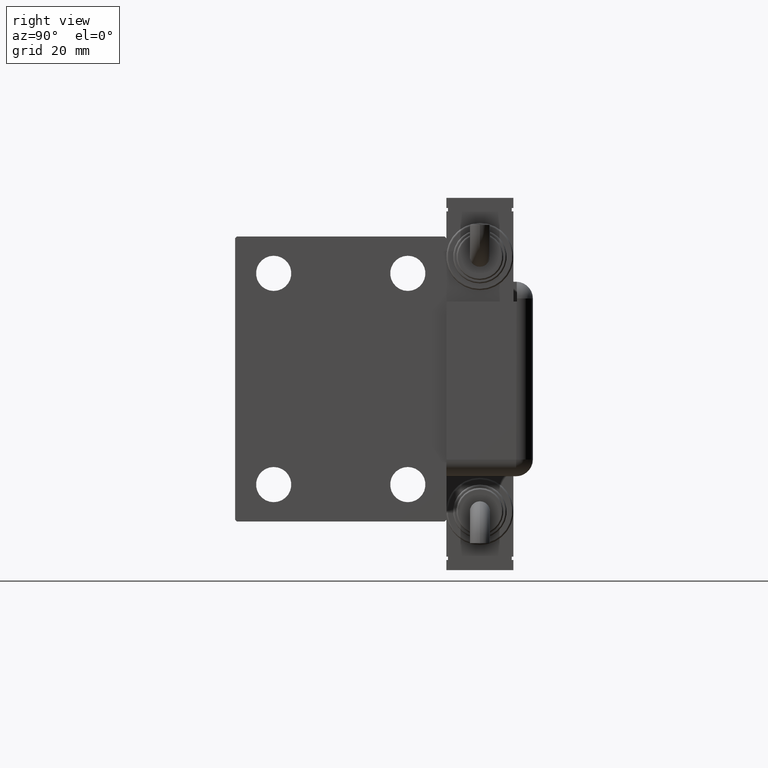
[diagram: clean part render]
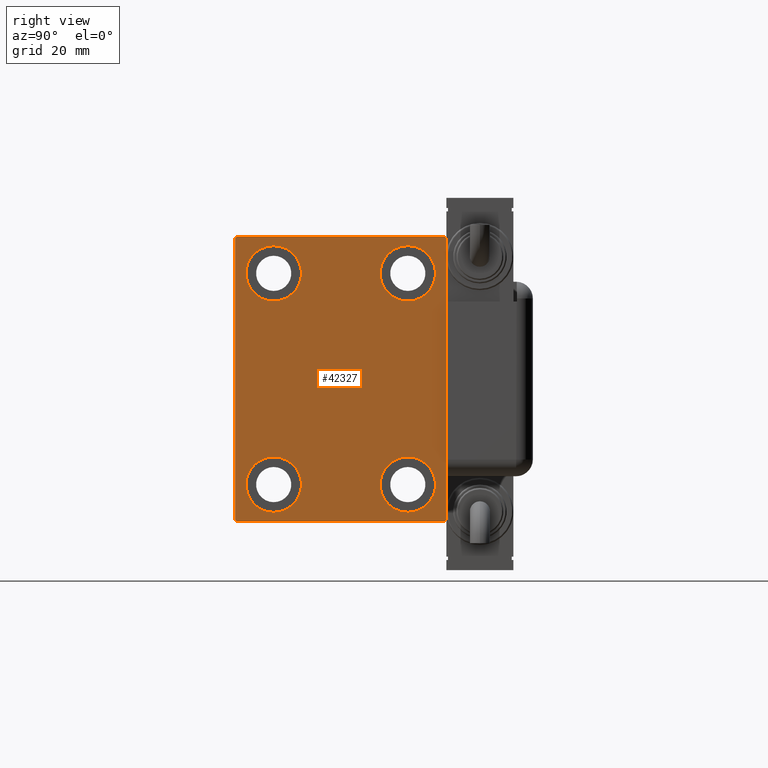
[diagram: same view with one face highlighted and labeled with its STEP entity id]
A machine part, right view. The second image highlights one B-rep face of the part: STEP entity #42327.
In plain terms, the highlighted planar face has unit normal (1, 0, 0).
Its self-contained STEP definition (entity closure, byte-faithful):
#363 = DIRECTION ( 'NONE',  ( 0.000000000000000000, 0.000000000000000000, 1.000000000000000000 ) ) ;
#407 = ORIENTED_EDGE ( 'NONE', *, *, #25971, .T. ) ;
#501 = VERTEX_POINT ( 'NONE', #33634 ) ;
#786 = CARTESIAN_POINT ( 'NONE',  ( 113.0000000000000000, 31.50000000000000000, 41.99999999999997868 ) ) ;
#1880 = CARTESIAN_POINT ( 'NONE',  ( 113.0000000000000000, 20.00000000000000355, 31.50000000000000000 ) ) ;
#2125 = DIRECTION ( 'NONE',  ( 0.000000000000000000, -1.000000000000000000, -2.202823461557850341E-16 ) ) ;
#2522 = FACE_BOUND ( 'NONE', #39746, .T. ) ;
#2602 = DIRECTION ( 'NONE',  ( -1.000000000000000000, -0.000000000000000000, -0.000000000000000000 ) ) ;
#2887 = EDGE_LOOP ( 'NONE', ( #19502, #5166, #49392, #10371, #407, #18317, #56130, #32380 ) ) ;
#4275 = CARTESIAN_POINT ( 'NONE',  ( 113.0000000000000000, -19.99999999999999645, 23.25000000000000355 ) ) ;
#5166 = ORIENTED_EDGE ( 'NONE', *, *, #27017, .T. ) ;
#5441 = VECTOR ( 'NONE', #11401, 1000.000000000000000 ) ;
#5452 = DIRECTION ( 'NONE',  ( -1.000000000000000000, -0.000000000000000000, -0.000000000000000000 ) ) ;
#5490 = ORIENTED_EDGE ( 'NONE', *, *, #39748, .T. ) ;
#6000 = DIRECTION ( 'NONE',  ( -1.000000000000000000, -0.000000000000000000, -0.000000000000000000 ) ) ;
#6802 = ORIENTED_EDGE ( 'NONE', *, *, #26576, .T. ) ;
#7289 = VERTEX_POINT ( 'NONE', #7577 ) ;
#7577 = CARTESIAN_POINT ( 'NONE',  ( 113.0000000000000000, 30.99999999999995737, 42.50000000000000711 ) ) ;
#7749 = DIRECTION ( 'NONE',  ( 0.000000000000000000, 1.000000000000000000, 0.000000000000000000 ) ) ;
#8161 = AXIS2_PLACEMENT_3D ( 'NONE', #55216, #55515, #37378 ) ;
#9238 = AXIS2_PLACEMENT_3D ( 'NONE', #45702, #14572, #363 ) ;
#9383 = EDGE_CURVE ( 'NONE', #25319, #27963, #40907, .T. ) ;
#10136 = LINE ( 'NONE', #32815, #48191 ) ;
#10371 = ORIENTED_EDGE ( 'NONE', *, *, #21369, .T. ) ;
#10837 = CARTESIAN_POINT ( 'NONE',  ( 113.0000000000000000, 19.99999999999999645, -31.49999999999999289 ) ) ;
#11293 = PLANE ( 'NONE',  #48804 ) ;
#11401 = DIRECTION ( 'NONE',  ( -0.000000000000000000, -0.7071067811865573427, 0.7071067811865378028 ) ) ;
#14369 = DIRECTION ( 'NONE',  ( 0.000000000000000000, -0.7071067811865474617, -0.7071067811865474617 ) ) ;
#14572 = DIRECTION ( 'NONE',  ( -1.000000000000000000, -0.000000000000000000, -0.000000000000000000 ) ) ;
#15191 = CIRCLE ( 'NONE', #24866, 8.249999999999992895 ) ;
#15451 = VECTOR ( 'NONE', #31459, 1000.000000000000114 ) ;
#15501 = ORIENTED_EDGE ( 'NONE', *, *, #17149, .T. ) ;
#15849 = LINE ( 'NONE', #57848, #27871 ) ;
#15924 = LINE ( 'NONE', #19555, #5441 ) ;
#16750 = DIRECTION ( 'NONE',  ( 0.000000000000000000, 0.000000000000000000, -1.000000000000000000 ) ) ;
#17149 = EDGE_CURVE ( 'NONE', #17727, #37861, #30480, .T. ) ;
#17727 = VERTEX_POINT ( 'NONE', #41477 ) ;
#17927 = CARTESIAN_POINT ( 'NONE',  ( 113.0000000000000000, -20.00000000000000355, -23.24999999999999289 ) ) ;
#18275 = CARTESIAN_POINT ( 'NONE',  ( 113.0000000000000000, 20.00000000000000355, 23.25000000000000355 ) ) ;
#18317 = ORIENTED_EDGE ( 'NONE', *, *, #32376, .T. ) ;
#18437 = CARTESIAN_POINT ( 'NONE',  ( 113.0000000000000000, 36.75000000000000000, -36.75000000000000000 ) ) ;
#18750 = EDGE_LOOP ( 'NONE', ( #28215, #34854 ) ) ;
#18998 = DIRECTION ( 'NONE',  ( 0.000000000000000000, 0.000000000000000000, 1.000000000000000000 ) ) ;
#19233 = VECTOR ( 'NONE', #28074, 1000.000000000000000 ) ;
#19502 = ORIENTED_EDGE ( 'NONE', *, *, #40770, .T. ) ;
#19520 = DIRECTION ( 'NONE',  ( 0.000000000000000000, 0.000000000000000000, 1.000000000000000000 ) ) ;
#19555 = CARTESIAN_POINT ( 'NONE',  ( 113.0000000000000000, 36.74999999999955946, 36.75000000000057554 ) ) ;
#19750 = EDGE_CURVE ( 'NONE', #50340, #44293, #23815, .T. ) ;
#19754 = CIRCLE ( 'NONE', #8161, 8.250000000000000000 ) ;
#20802 = CIRCLE ( 'NONE', #33351, 8.250000000000000000 ) ;
#20865 = LINE ( 'NONE', #25114, #40073 ) ;
#21369 = EDGE_CURVE ( 'NONE', #36338, #501, #49417, .T. ) ;
#22348 = CARTESIAN_POINT ( 'NONE',  ( 113.0000000000000000, 31.50000000000001421, -42.50000000000000711 ) ) ;
#23016 = VERTEX_POINT ( 'NONE', #786 ) ;
#23382 = CARTESIAN_POINT ( 'NONE',  ( 113.0000000000000000, 31.50000000000001421, -41.99999999999999289 ) ) ;
#23732 = AXIS2_PLACEMENT_3D ( 'NONE', #53365, #2602, #26164 ) ;
#23815 = CIRCLE ( 'NONE', #42149, 8.250000000000000000 ) ;
#23847 = VERTEX_POINT ( 'NONE', #23382 ) ;
#23883 = DIRECTION ( 'NONE',  ( 0.000000000000000000, 0.000000000000000000, 1.000000000000000000 ) ) ;
#24363 = CARTESIAN_POINT ( 'NONE',  ( 113.0000000000000000, 20.00000000000000355, 31.50000000000000000 ) ) ;
#24866 = AXIS2_PLACEMENT_3D ( 'NONE', #38370, #55612, #47748 ) ;
#24896 = FACE_BOUND ( 'NONE', #18750, .T. ) ;
#25102 = VERTEX_POINT ( 'NONE', #50749 ) ;
#25114 = CARTESIAN_POINT ( 'NONE',  ( 113.0000000000000000, 31.50000000000000000, 42.50000000000000711 ) ) ;
#25319 = VERTEX_POINT ( 'NONE', #18275 ) ;
#25969 = CARTESIAN_POINT ( 'NONE',  ( 113.0000000000000000, -31.50000000000000000, -41.99999999999999289 ) ) ;
#25971 = EDGE_CURVE ( 'NONE', #501, #25102, #44316, .T. ) ;
#26164 = DIRECTION ( 'NONE',  ( 0.000000000000000000, 0.000000000000000000, 1.000000000000000000 ) ) ;
#26289 = EDGE_LOOP ( 'NONE', ( #51775, #5490 ) ) ;
#26356 = EDGE_CURVE ( 'NONE', #38824, #36338, #15849, .T. ) ;
#26576 = EDGE_CURVE ( 'NONE', #27963, #25319, #29832, .T. ) ;
#27017 = EDGE_CURVE ( 'NONE', #44506, #38824, #10136, .T. ) ;
#27467 = ORIENTED_EDGE ( 'NONE', *, *, #41855, .T. ) ;
#27871 = VECTOR ( 'NONE', #16750, 1000.000000000000000 ) ;
#27963 = VERTEX_POINT ( 'NONE', #57643 ) ;
#28074 = DIRECTION ( 'NONE',  ( 0.000000000000000000, -1.632680918566406300E-16, 1.000000000000000000 ) ) ;
#28215 = ORIENTED_EDGE ( 'NONE', *, *, #42928, .T. ) ;
#29735 = DIRECTION ( 'NONE',  ( 1.000000000000000000, 0.000000000000000000, 0.000000000000000000 ) ) ;
#29832 = CIRCLE ( 'NONE', #59787, 8.249999999999992895 ) ;
#30338 = CARTESIAN_POINT ( 'NONE',  ( 113.0000000000000000, 0.000000000000000000, 0.000000000000000000 ) ) ;
#30480 = CIRCLE ( 'NONE', #9238, 8.250000000000000000 ) ;
#31459 = DIRECTION ( 'NONE',  ( -0.000000000000000000, 0.7071067811865474617, 0.7071067811865474617 ) ) ;
#32022 = LINE ( 'NONE', #22348, #19233 ) ;
#32376 = EDGE_CURVE ( 'NONE', #25102, #23847, #35971, .T. ) ;
#32380 = ORIENTED_EDGE ( 'NONE', *, *, #43707, .T. ) ;
#32815 = CARTESIAN_POINT ( 'NONE',  ( 113.0000000000000000, -36.74999999999998579, 36.74999999999998579 ) ) ;
#33351 = AXIS2_PLACEMENT_3D ( 'NONE', #10837, #6000, #18998 ) ;
#33634 = CARTESIAN_POINT ( 'NONE',  ( 113.0000000000000000, -30.99999999999998579, -42.50000000000000711 ) ) ;
#33730 = CARTESIAN_POINT ( 'NONE',  ( 113.0000000000000000, 19.99999999999999645, -39.74999999999999289 ) ) ;
#34854 = ORIENTED_EDGE ( 'NONE', *, *, #46418, .T. ) ;
#35687 = EDGE_LOOP ( 'NONE', ( #42366, #6802 ) ) ;
#35971 = LINE ( 'NONE', #18437, #15451 ) ;
#36338 = VERTEX_POINT ( 'NONE', #25969 ) ;
#37378 = DIRECTION ( 'NONE',  ( 0.000000000000000000, 0.000000000000000000, 1.000000000000000000 ) ) ;
#37861 = VERTEX_POINT ( 'NONE', #33730 ) ;
#38370 = CARTESIAN_POINT ( 'NONE',  ( 113.0000000000000000, -19.99999999999999645, 31.50000000000000000 ) ) ;
#38437 = DIRECTION ( 'NONE',  ( -1.000000000000000000, -0.000000000000000000, -0.000000000000000000 ) ) ;
#38824 = VERTEX_POINT ( 'NONE', #48613 ) ;
#39187 = CARTESIAN_POINT ( 'NONE',  ( 113.0000000000000000, -31.50000000000000000, -42.50000000000000711 ) ) ;
#39647 = DIRECTION ( 'NONE',  ( 0.000000000000000000, 0.000000000000000000, 1.000000000000000000 ) ) ;
#39746 = EDGE_LOOP ( 'NONE', ( #27467, #15501 ) ) ;
#39748 = EDGE_CURVE ( 'NONE', #44293, #50340, #19754, .T. ) ;
#40073 = VECTOR ( 'NONE', #2125, 1000.000000000000000 ) ;
#40770 = EDGE_CURVE ( 'NONE', #7289, #44506, #20865, .T. ) ;
#40907 = CIRCLE ( 'NONE', #52508, 8.249999999999992895 ) ;
#41477 = CARTESIAN_POINT ( 'NONE',  ( 113.0000000000000000, 19.99999999999999645, -23.24999999999999289 ) ) ;
#41855 = EDGE_CURVE ( 'NONE', #37861, #17727, #20802, .T. ) ;
#42149 = AXIS2_PLACEMENT_3D ( 'NONE', #56512, #5452, #23883 ) ;
#42327 = ADVANCED_FACE ( 'NONE', ( #2522, #24896, #43323, #57215, #52682 ), #11293, .T. ) ;
#42366 = ORIENTED_EDGE ( 'NONE', *, *, #9383, .T. ) ;
#42490 = VERTEX_POINT ( 'NONE', #46895 ) ;
#42928 = EDGE_CURVE ( 'NONE', #59203, #42490, #57554, .T. ) ;
#43323 = FACE_BOUND ( 'NONE', #35687, .T. ) ;
#43707 = EDGE_CURVE ( 'NONE', #23016, #7289, #15924, .T. ) ;
#44293 = VERTEX_POINT ( 'NONE', #17927 ) ;
#44316 = LINE ( 'NONE', #39187, #54916 ) ;
#44478 = CARTESIAN_POINT ( 'NONE',  ( 113.0000000000000000, -20.00000000000000355, -39.74999999999999289 ) ) ;
#44506 = VERTEX_POINT ( 'NONE', #47073 ) ;
#45702 = CARTESIAN_POINT ( 'NONE',  ( 113.0000000000000000, 19.99999999999999645, -31.49999999999999289 ) ) ;
#46418 = EDGE_CURVE ( 'NONE', #42490, #59203, #15191, .T. ) ;
#46428 = DIRECTION ( 'NONE',  ( -1.000000000000000000, -0.000000000000000000, -0.000000000000000000 ) ) ;
#46895 = CARTESIAN_POINT ( 'NONE',  ( 113.0000000000000000, -19.99999999999999645, 39.74999999999999289 ) ) ;
#47073 = CARTESIAN_POINT ( 'NONE',  ( 113.0000000000000000, -30.99999999999998579, 42.49999999999999289 ) ) ;
#47748 = DIRECTION ( 'NONE',  ( 0.000000000000000000, 0.000000000000000000, 1.000000000000000000 ) ) ;
#48157 = DIRECTION ( 'NONE',  ( 0.000000000000000000, 0.000000000000000000, -1.000000000000000000 ) ) ;
#48191 = VECTOR ( 'NONE', #14369, 1000.000000000000114 ) ;
#48613 = CARTESIAN_POINT ( 'NONE',  ( 113.0000000000000000, -31.50000000000000000, 41.99999999999997868 ) ) ;
#48804 = AXIS2_PLACEMENT_3D ( 'NONE', #30338, #29735, #48157 ) ;
#49392 = ORIENTED_EDGE ( 'NONE', *, *, #26356, .T. ) ;
#49417 = LINE ( 'NONE', #54251, #54742 ) ;
#49714 = DIRECTION ( 'NONE',  ( -0.000000000000000000, 0.7071067811865474617, -0.7071067811865474617 ) ) ;
#50340 = VERTEX_POINT ( 'NONE', #44478 ) ;
#50749 = CARTESIAN_POINT ( 'NONE',  ( 113.0000000000000000, 31.00000000000000000, -42.50000000000000711 ) ) ;
#51775 = ORIENTED_EDGE ( 'NONE', *, *, #19750, .T. ) ;
#52508 = AXIS2_PLACEMENT_3D ( 'NONE', #24363, #46428, #19520 ) ;
#52682 = FACE_OUTER_BOUND ( 'NONE', #2887, .T. ) ;
#53365 = CARTESIAN_POINT ( 'NONE',  ( 113.0000000000000000, -19.99999999999999645, 31.50000000000000000 ) ) ;
#54251 = CARTESIAN_POINT ( 'NONE',  ( 113.0000000000000000, -36.74999999999999289, -36.74999999999999289 ) ) ;
#54742 = VECTOR ( 'NONE', #49714, 1000.000000000000114 ) ;
#54891 = EDGE_CURVE ( 'NONE', #23847, #23016, #32022, .T. ) ;
#54916 = VECTOR ( 'NONE', #7749, 1000.000000000000000 ) ;
#55216 = CARTESIAN_POINT ( 'NONE',  ( 113.0000000000000000, -20.00000000000000355, -31.49999999999999289 ) ) ;
#55515 = DIRECTION ( 'NONE',  ( -1.000000000000000000, -0.000000000000000000, -0.000000000000000000 ) ) ;
#55612 = DIRECTION ( 'NONE',  ( -1.000000000000000000, -0.000000000000000000, -0.000000000000000000 ) ) ;
#56130 = ORIENTED_EDGE ( 'NONE', *, *, #54891, .T. ) ;
#56512 = CARTESIAN_POINT ( 'NONE',  ( 113.0000000000000000, -20.00000000000000355, -31.49999999999999289 ) ) ;
#57215 = FACE_BOUND ( 'NONE', #26289, .T. ) ;
#57554 = CIRCLE ( 'NONE', #23732, 8.249999999999992895 ) ;
#57643 = CARTESIAN_POINT ( 'NONE',  ( 113.0000000000000000, 20.00000000000000355, 39.74999999999999289 ) ) ;
#57848 = CARTESIAN_POINT ( 'NONE',  ( 113.0000000000000000, -31.50000000000000000, 42.49999999999999289 ) ) ;
#59203 = VERTEX_POINT ( 'NONE', #4275 ) ;
#59787 = AXIS2_PLACEMENT_3D ( 'NONE', #1880, #38437, #39647 ) ;